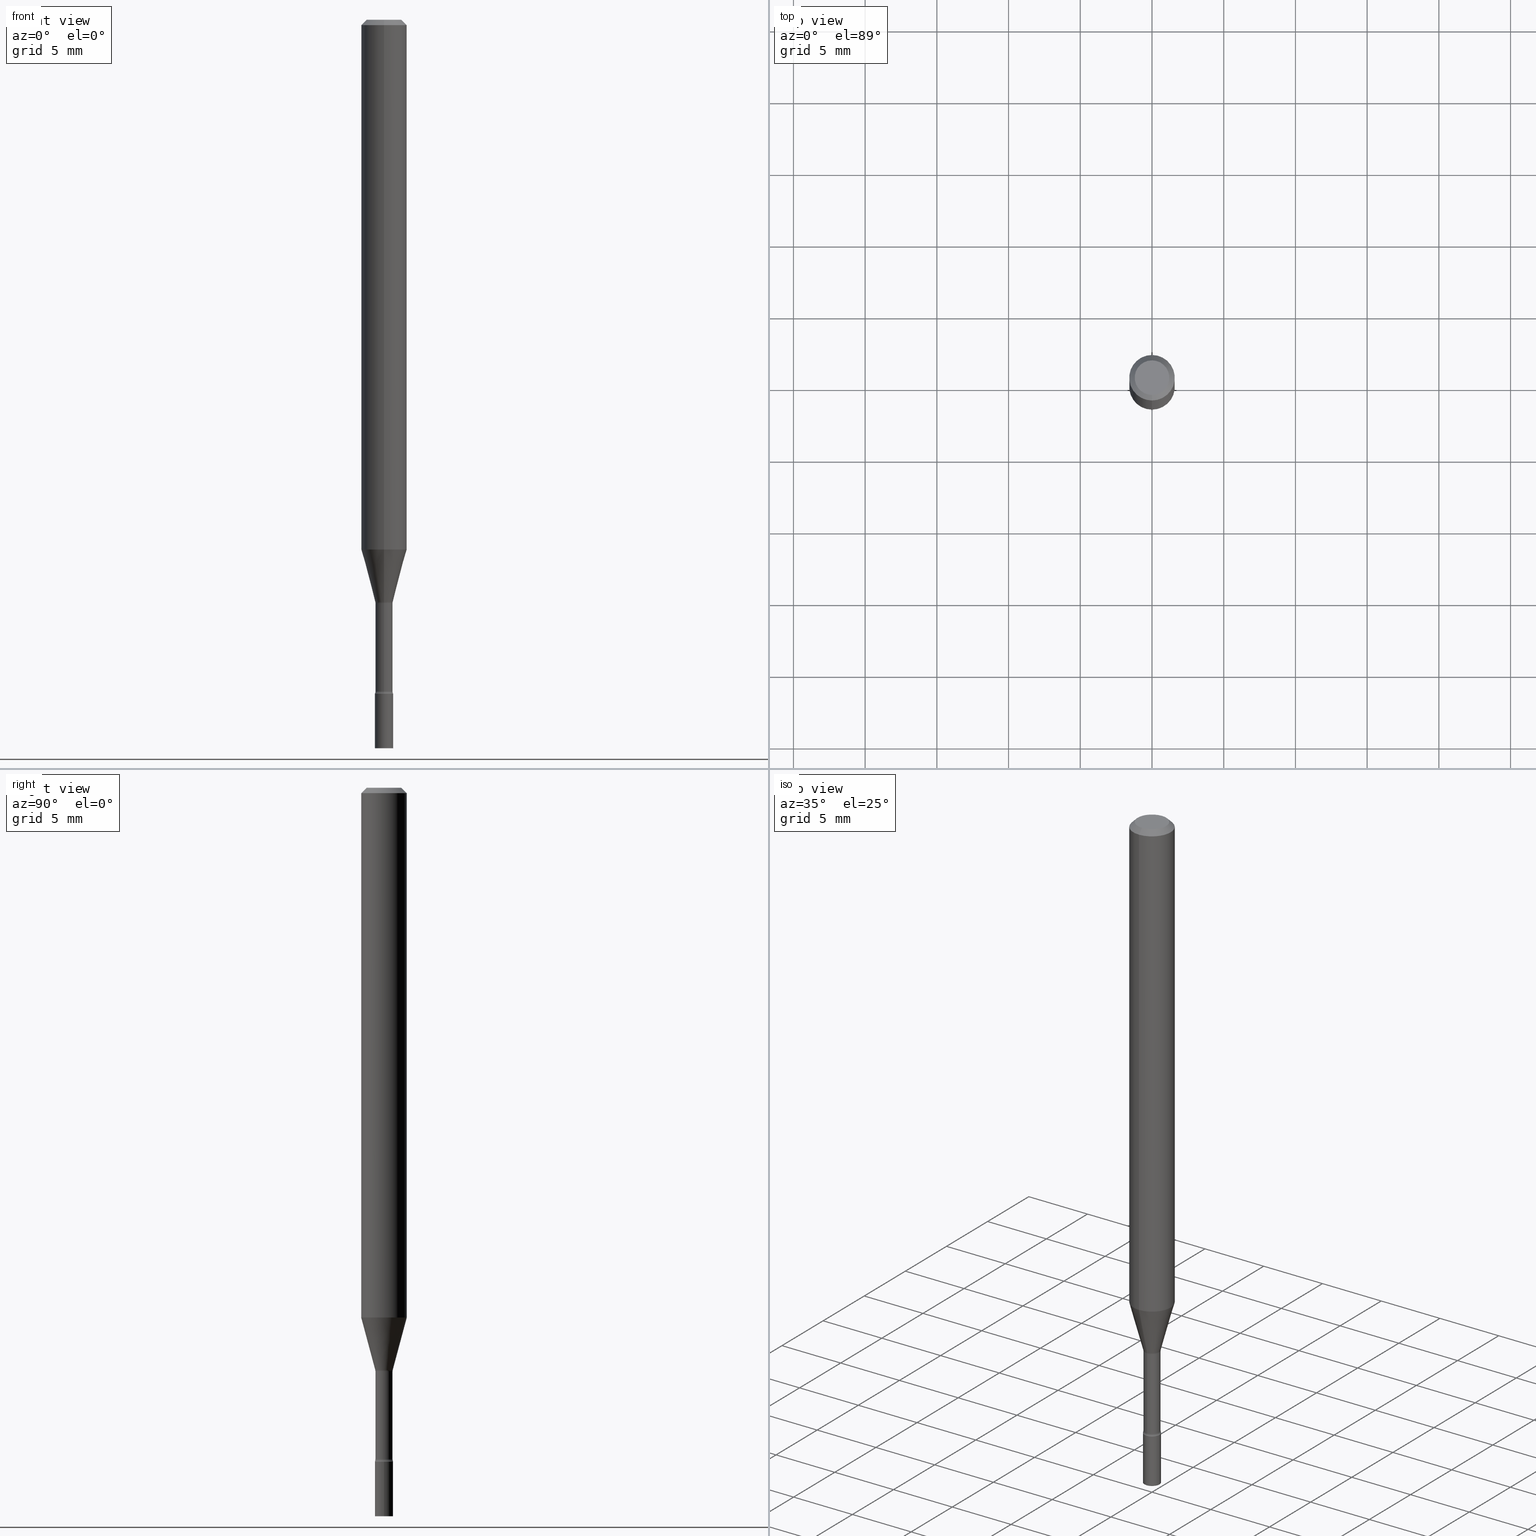
[diagram: canonical four-view strip — front | top / right | iso, engineering-drawing reading convention]
A machine part, canonical four-view strip (front | top / right | iso — engineering-drawing reading convention). The complete STEP part file that produces these views, byte-faithful:
ISO-10303-21;
HEADER;
FILE_DESCRIPTION (( 'STEP AP203' ),
    '1' );
FILE_NAME ('04276.STEP',
    '2024-03-08T22:46:18',
    ( '' ),
    ( '' ),
    'SwSTEP 2.0',
    'SolidWorks 2023',
    '' );
FILE_SCHEMA (( 'CONFIG_CONTROL_DESIGN' ));
ENDSEC;

DATA;
#1 = PERSON_AND_ORGANIZATION_ROLE ( 'creator' ) ;
#2 = DIRECTION ( 'NONE',  ( -2.445515036906521826E-29, 3.491415133818832582E-15, 1.000000000000000000 ) ) ;
#3 = AXIS2_PLACEMENT_3D ( 'NONE', #147, #113, #314 ) ;
#4 = DIRECTION ( 'NONE',  ( -6.982962677686266711E-15, -1.000000000000000000, 3.491415133818832582E-15 ) ) ;
#5 = EDGE_CURVE ( 'NONE', #335, #217, #296, .T. ) ;
#6 = LINE ( 'NONE', #9, #83 ) ;
#7 = CALENDAR_DATE ( 2024, 8, 3 ) ;
#8 = EDGE_CURVE ( 'NONE', #51, #105, #362, .T. ) ;
#9 = CARTESIAN_POINT ( 'NONE',  ( -1.640996229256272766E-16, -0.02350000000000000352, 8.204825564474257839E-17 ) ) ;
#10 = ORIENTED_EDGE ( 'NONE', *, *, #233, .T. ) ;
#11 = LINE ( 'NONE', #487, #102 ) ;
#12 = AXIS2_PLACEMENT_3D ( 'NONE', #122, #168, #284 ) ;
#13 = PERSON_AND_ORGANIZATION_ROLE ( 'creator' ) ;
#14 = CARTESIAN_POINT ( 'NONE',  ( 3.908159243488338509E-29, -5.579604345982483848E-15, -1.598092501787272912 ) ) ;
#15 = CC_DESIGN_DATE_AND_TIME_ASSIGNMENT ( #458, #299, ( #196 ) ) ;
#16 = CARTESIAN_POINT ( 'NONE',  ( -2.688440630908820659E-16, -0.03850000000000559919, -1.601974787463810834 ) ) ;
#17 = ORIENTED_EDGE ( 'NONE', *, *, #103, .T. ) ;
#18 = FACE_OUTER_BOUND ( 'NONE', #221, .T. ) ;
#19 = VERTEX_POINT ( 'NONE', #432 ) ;
#20 = PLANE ( 'NONE',  #440 ) ;
#21 = ORIENTED_EDGE ( 'NONE', *, *, #376, .F. ) ;
#22 = DIRECTION ( 'NONE',  ( -6.982962677686265922E-15, -1.000000000000000000, 0.000000000000000000 ) ) ;
#23 = ORIENTED_EDGE ( 'NONE', *, *, #116, .T. ) ;
#24 = FACE_OUTER_BOUND ( 'NONE', #254, .T. ) ;
#25 = ORIENTED_EDGE ( 'NONE', *, *, #321, .F. ) ;
#26 = EDGE_CURVE ( 'NONE', #56, #309, #448, .T. ) ;
#27 = CIRCLE ( 'NONE', #60, 0.01500000000000002720 ) ;
#28 = CIRCLE ( 'NONE', #330, 0.02350000000000000352 ) ;
#29 =( LENGTH_UNIT ( ) NAMED_UNIT ( * ) SI_UNIT ( $, .METRE. ) );
#30 = DIRECTION ( 'NONE',  ( -2.445515036906521826E-29, 3.491415133818832582E-15, 1.000000000000000000 ) ) ;
#31 = EDGE_LOOP ( 'NONE', ( #298, #186, #175, #178 ) ) ;
#32 = UNCERTAINTY_MEASURE_WITH_UNIT (LENGTH_MEASURE( 1.000000000000000082E-05 ), #241, 'distance_accuracy_value', 'NONE');
#33 = CARTESIAN_POINT ( 'NONE',  ( 3.668272555359789903E-31, -5.237122700728258955E-17, -0.01500000000000003067 ) ) ;
#34 = CIRCLE ( 'NONE', #482, 0.06250000000000000000 ) ;
#35 = DIRECTION ( 'NONE',  ( -6.982962677686266711E-15, -1.000000000000000000, 3.491415133818832582E-15 ) ) ;
#36 = ORIENTED_EDGE ( 'NONE', *, *, #216, .F. ) ;
#37 = DIRECTION ( 'NONE',  ( -2.445468806185136597E-29, 3.491481338843145583E-15, 1.000000000000000000 ) ) ;
#38 =( NAMED_UNIT ( * ) PLANE_ANGLE_UNIT ( ) SI_UNIT ( $, .RADIAN. ) );
#39 = CIRCLE ( 'NONE', #202, 0.01500000000000002720 ) ;
#40 = DIRECTION ( 'NONE',  ( 2.445515036906521826E-29, -3.491415133818832582E-15, -1.000000000000000000 ) ) ;
#41 = LOCAL_TIME ( 17, 46, 18.00000000000000000, #170 ) ;
#42 = DIRECTION ( 'NONE',  ( -2.445515036906521826E-29, 3.491415133818832582E-15, 1.000000000000000000 ) ) ;
#43 = CARTESIAN_POINT ( 'NONE',  ( 4.440892098500625669E-16, 0.06250000000000000000, -2.182134458636770364E-16 ) ) ;
#44 = PERSON_AND_ORGANIZATION_ROLE ( 'classification_officer' ) ;
#45 = EDGE_CURVE ( 'NONE', #164, #309, #392, .T. ) ;
#46 = DIRECTION ( 'NONE',  ( 1.000000000000000000, -6.982962677686267499E-15, 4.876176775795936353E-29 ) ) ;
#47 = ORIENTED_EDGE ( 'NONE', *, *, #8, .F. ) ;
#48 = MANIFOLD_SOLID_BREP ( 'Body-Move/Copy2[1]', #212 ) ;
#49 = FACE_OUTER_BOUND ( 'NONE', #383, .T. ) ;
#50 = CONICAL_SURFACE ( 'NONE', #338, 0.06250000000000000000, 0.7853981633974483900 ) ;
#51 = VERTEX_POINT ( 'NONE', #232 ) ;
#52 = AXIS2_PLACEMENT_3D ( 'NONE', #201, #485, #316 ) ;
#53 = APPROVAL_ROLE ( '' ) ;
#54 = CARTESIAN_POINT ( 'NONE',  ( 3.908159243488338509E-29, -5.579604345982483848E-15, -1.598092501787272912 ) ) ;
#55 = LINE ( 'NONE', #460, #69 ) ;
#56 = VERTEX_POINT ( 'NONE', #194 ) ;
#57 = ADVANCED_FACE ( 'NONE', ( #311 ), #110, .T. ) ;
#58 = FACE_OUTER_BOUND ( 'NONE', #378, .T. ) ;
#59 = ORIENTED_EDGE ( 'NONE', *, *, #233, .F. ) ;
#60 = AXIS2_PLACEMENT_3D ( 'NONE', #435, #238, #278 ) ;
#61 = LOCAL_TIME ( 17, 46, 18.00000000000000000, #292 ) ;
#62 = CARTESIAN_POINT ( 'NONE',  ( 3.316907271900976096E-16, 0.04749999999999999362, -1.803007466896564694E-16 ) ) ;
#63 = EDGE_LOOP ( 'NONE', ( #407, #228, #332, #211 ) ) ;
#64 = ADVANCED_FACE ( 'NONE', ( #434 ), #472, .F. ) ;
#65 = CYLINDRICAL_SURFACE ( 'NONE', #151, 0.02350000000000000352 ) ;
#66 = ORIENTED_EDGE ( 'NONE', *, *, #321, .T. ) ;
#67 = DIRECTION ( 'NONE',  ( 1.000000000000000000, 0.000000000000000000, 0.000000000000000000 ) ) ;
#68 = EDGE_LOOP ( 'NONE', ( #290, #99, #430, #512 ) ) ;
#69 = VECTOR ( 'NONE', #136, 39.37007874015748143 ) ;
#70 = DIRECTION ( 'NONE',  ( 1.000000000000000000, -7.105427357601001070E-15, 4.926314697764371135E-29 ) ) ;
#71 = EDGE_LOOP ( 'NONE', ( #188, #275, #183, #157 ) ) ;
#72 = EDGE_CURVE ( 'NONE', #422, #164, #247, .T. ) ;
#73 = DIRECTION ( 'NONE',  ( -6.982962677686265922E-15, -1.000000000000000000, 0.000000000000000000 ) ) ;
#74 = APPLICATION_PROTOCOL_DEFINITION ( 'international standard', 'config_control_design', 1994, #82 ) ;
#75 = CIRCLE ( 'NONE', #143, 0.02500000000000000139 ) ;
#76 = ORIENTED_EDGE ( 'NONE', *, *, #106, .F. ) ;
#77 = CARTESIAN_POINT ( 'NONE',  ( 4.890937612370273194E-29, -6.982962677686291165E-15, -2.000000000000000000 ) ) ;
#78 = DIRECTION ( 'NONE',  ( -6.982962677686265133E-15, -1.000000000000000000, 0.000000000000000000 ) ) ;
#79 = FACE_OUTER_BOUND ( 'NONE', #259, .T. ) ;
#80 = DIRECTION ( 'NONE',  ( -6.982962677686265133E-15, -1.000000000000000000, 0.000000000000000000 ) ) ;
#81 = PERSON_AND_ORGANIZATION ( #355, #449 ) ;
#82 = APPLICATION_CONTEXT ( 'configuration controlled 3d designs of mechanical parts and assemblies' ) ;
#83 = VECTOR ( 'NONE', #293, 39.37007874015748143 ) ;
#84 = CARTESIAN_POINT ( 'NONE',  ( 4.364351673553919652E-16, 0.06249999999999995143, -0.01500000000000024751 ) ) ;
#85 = CIRCLE ( 'NONE', #459, 0.02401111260566398189 ) ;
#86 = VERTEX_POINT ( 'NONE', #152 ) ;
#87 = EDGE_CURVE ( 'NONE', #97, #193, #264, .T. ) ;
#88 = CARTESIAN_POINT ( 'NONE',  ( -2.688440630908763960E-16, -0.03850000000000646655, -1.843461651584688887 ) ) ;
#89 = PERSON_AND_ORGANIZATION ( #355, #449 ) ;
#90 = DIRECTION ( 'NONE',  ( -6.982962677686265922E-15, -1.000000000000000000, 0.000000000000000000 ) ) ;
#91 = ORIENTED_EDGE ( 'NONE', *, *, #391, .T. ) ;
#92 = DIRECTION ( 'NONE',  ( -1.000000000000000000, 6.982962677686265922E-15, -4.876176775795935793E-29 ) ) ;
#93 = AXIS2_PLACEMENT_3D ( 'NONE', #62, #505, #222 ) ;
#94 = APPROVAL_PERSON_ORGANIZATION ( #131, #478, #165 ) ;
#95 = DIRECTION ( 'NONE',  ( 2.445515036906521826E-29, -3.491415133818832582E-15, -1.000000000000000000 ) ) ;
#96 = ADVANCED_FACE ( 'NONE', ( #191 ), #312, .F. ) ;
#97 = VERTEX_POINT ( 'NONE', #474 ) ;
#98 = CARTESIAN_POINT ( 'NONE',  ( 3.908159243488338509E-29, -5.579604345982483848E-15, -1.598092501787272912 ) ) ;
#99 = ORIENTED_EDGE ( 'NONE', *, *, #252, .T. ) ;
#100 = CARTESIAN_POINT ( 'NONE',  ( 4.524117291442502256E-29, -6.459240476859818795E-15, -1.849999999999999867 ) ) ;
#101 = ORIENTED_EDGE ( 'NONE', *, *, #87, .T. ) ;
#102 = VECTOR ( 'NONE', #121, 39.37007874015748143 ) ;
#103 = EDGE_CURVE ( 'NONE', #19, #373, #273, .T. ) ;
#104 = FACE_OUTER_BOUND ( 'NONE', #507, .T. ) ;
#105 = VERTEX_POINT ( 'NONE', #277 ) ;
#106 = EDGE_CURVE ( 'NONE', #461, #97, #27, .T. ) ;
#107 = VERTEX_POINT ( 'NONE', #471 ) ;
#108 = FACE_OUTER_BOUND ( 'NONE', #348, .T. ) ;
#109 = AXIS2_PLACEMENT_3D ( 'NONE', #400, #204, #78 ) ;
#110 = CYLINDRICAL_SURFACE ( 'NONE', #371, 0.02350000000000000352 ) ;
#111 = CARTESIAN_POINT ( 'NONE',  ( 4.890937612370273194E-29, -6.982962677686291165E-15, -2.000000000000000000 ) ) ;
#112 = DATE_AND_TIME ( #476, #413 ) ;
#113 = DIRECTION ( 'NONE',  ( -2.445515036906521826E-29, 3.491415133818832582E-15, 1.000000000000000000 ) ) ;
#114 = APPLICATION_CONTEXT ( 'configuration controlled 3d designs of mechanical parts and assemblies' ) ;
#115 = DIRECTION ( 'NONE',  ( 1.000000000000000000, -6.982962677686254878E-15, 0.000000000000000000 ) ) ;
#116 = EDGE_CURVE ( 'NONE', #219, #309, #199, .T. ) ;
#117 = AXIS2_PLACEMENT_3D ( 'NONE', #453, #495, #80 ) ;
#118 = CIRCLE ( 'NONE', #179, 0.02500000000000000139 ) ;
#119 = ORIENTED_EDGE ( 'NONE', *, *, #360, .T. ) ;
#120 = DIRECTION ( 'NONE',  ( -6.982962677686265922E-15, -1.000000000000000000, 3.491415133818832582E-15 ) ) ;
#121 = DIRECTION ( 'NONE',  ( 1.839019923739601104E-15, 0.2588190451025250693, 0.9659258262890670910 ) ) ;
#122 = CARTESIAN_POINT ( 'NONE',  ( 0.000000000000000000, 0.000000000000000000, 0.000000000000000000 ) ) ;
#123 = DATE_TIME_ROLE ( 'creation_date' ) ;
#124 = DESIGN_CONTEXT ( 'detailed design', #114, 'design' ) ;
#125 = AXIS2_PLACEMENT_3D ( 'NONE', #272, #513, #519 ) ;
#126 = LINE ( 'NONE', #289, #304 ) ;
#127 = ADVANCED_FACE ( 'NONE', ( #108 ), #329, .T. ) ;
#128 = ORIENTED_EDGE ( 'NONE', *, *, #270, .F. ) ;
#129 = DATE_AND_TIME ( #452, #381 ) ;
#130 = CARTESIAN_POINT ( 'NONE',  ( 3.917653431487879575E-29, -5.593159016947357312E-15, -1.601974787463810834 ) ) ;
#131 = PERSON_AND_ORGANIZATION ( #355, #449 ) ;
#132 = CARTESIAN_POINT ( 'NONE',  ( -1.676687031750346939E-16, -0.02401111260566956077, -1.598092501787272912 ) ) ;
#133 = DIRECTION ( 'NONE',  ( -1.807323732225330928E-15, -0.2588190451025182970, 0.9659258262890689783 ) ) ;
#134 = AXIS2_PLACEMENT_3D ( 'NONE', #111, #310, #399 ) ;
#135 = ORIENTED_EDGE ( 'NONE', *, *, #237, .F. ) ;
#136 = DIRECTION ( 'NONE',  ( -2.445468806185136877E-29, 3.491481338843145188E-15, 1.000000000000000000 ) ) ;
#137 = ORIENTED_EDGE ( 'NONE', *, *, #360, .F. ) ;
#138 = CARTESIAN_POINT ( 'NONE',  ( 0.02500000000000000139, -7.157536744628447044E-15, -2.000000000000000000 ) ) ;
#139 = ORIENTED_EDGE ( 'NONE', *, *, #158, .F. ) ;
#140 = EDGE_CURVE ( 'NONE', #461, #230, #195, .T. ) ;
#141 = DIRECTION ( 'NONE',  ( -6.982962677686267499E-15, -1.000000000000000000, 0.000000000000000000 ) ) ;
#142 = EDGE_LOOP ( 'NONE', ( #197, #327, #146, #265 ) ) ;
#143 = AXIS2_PLACEMENT_3D ( 'NONE', #100, #384, #374 ) ;
#144 = EDGE_CURVE ( 'NONE', #164, #422, #411, .T. ) ;
#145 = DIRECTION ( 'NONE',  ( -6.982962677686265922E-15, -1.000000000000000000, 3.491415133818832582E-15 ) ) ;
#146 = ORIENTED_EDGE ( 'NONE', *, *, #148, .F. ) ;
#147 = CARTESIAN_POINT ( 'NONE',  ( 3.917579371037813479E-29, -5.593265075727110025E-15, -1.601974787463810834 ) ) ;
#148 = EDGE_CURVE ( 'NONE', #309, #56, #167, .T. ) ;
#149 = DIRECTION ( 'NONE',  ( -6.982962677686265922E-15, -1.000000000000000000, 3.483106191921935554E-15 ) ) ;
#150 = AXIS2_PLACEMENT_3D ( 'NONE', #250, #361, #162 ) ;
#151 = AXIS2_PLACEMENT_3D ( 'NONE', #229, #42, #120 ) ;
#152 = CARTESIAN_POINT ( 'NONE',  ( -1.745740669421115301E-16, -0.02500000000000647885, -1.849999999999999867 ) ) ;
#153 = COORDINATED_UNIVERSAL_TIME_OFFSET ( 5, 0, .BEHIND. ) ;
#154 = DIRECTION ( 'NONE',  ( -6.982962677686266711E-15, -1.000000000000000000, 3.491415133818832582E-15 ) ) ;
#155 = ADVANCED_FACE ( 'NONE', ( #200 ), #50, .T. ) ;
#156 = COORDINATED_UNIVERSAL_TIME_OFFSET ( 5, 0, .BEHIND. ) ;
#157 = ORIENTED_EDGE ( 'NONE', *, *, #26, .T. ) ;
#158 = EDGE_CURVE ( 'NONE', #217, #86, #213, .T. ) ;
#159 = DIRECTION ( 'NONE',  ( -2.445515036906521826E-29, 3.491415133818832582E-15, 1.000000000000000000 ) ) ;
#160 = AXIS2_PLACEMENT_3D ( 'NONE', #16, #456, #258 ) ;
#161 = DIRECTION ( 'NONE',  ( -2.445515036906521826E-29, 3.491415133818832582E-15, 1.000000000000000000 ) ) ;
#162 = DIRECTION ( 'NONE',  ( -6.982962677686265133E-15, -1.000000000000000000, 0.000000000000000000 ) ) ;
#163 = FACE_OUTER_BOUND ( 'NONE', #142, .T. ) ;
#164 = VERTEX_POINT ( 'NONE', #406 ) ;
#165 = APPROVAL_ROLE ( '' ) ;
#166 = CIRCLE ( 'NONE', #117, 0.02500000000000000139 ) ;
#167 = CIRCLE ( 'NONE', #394, 0.06250000000000000000 ) ;
#168 = DIRECTION ( 'NONE',  ( -2.445515036906521826E-29, 3.491415133818832582E-15, 1.000000000000000000 ) ) ;
#169 = AXIS2_PLACEMENT_3D ( 'NONE', #261, #187, #297 ) ;
#170 = COORDINATED_UNIVERSAL_TIME_OFFSET ( 5, 0, .BEHIND. ) ;
#171 = CARTESIAN_POINT ( 'NONE',  ( -1.640996229255880800E-16, -0.02350000000000559280, -1.601974787463810834 ) ) ;
#172 = ADVANCED_FACE ( 'NONE', ( #49 ), #322, .T. ) ;
#173 = DATE_AND_TIME ( #328, #41 ) ;
#174 = DIRECTION ( 'NONE',  ( -2.445515036906521826E-29, 3.491415133818832582E-15, 1.000000000000000000 ) ) ;
#175 = ORIENTED_EDGE ( 'NONE', *, *, #158, .T. ) ;
#176 = DIRECTION ( 'NONE',  ( -2.445515036906521826E-29, 3.491415133818832582E-15, 1.000000000000000000 ) ) ;
#177 = AXIS2_PLACEMENT_3D ( 'NONE', #98, #467, #500 ) ;
#178 = ORIENTED_EDGE ( 'NONE', *, *, #276, .F. ) ;
#179 = AXIS2_PLACEMENT_3D ( 'NONE', #77, #243, #115 ) ;
#180 = PRODUCT ( '04276', '04276', '', ( #365 ) ) ;
#181 = ADVANCED_FACE ( 'NONE', ( #207 ), #493, .F. ) ;
#182 = FACE_OUTER_BOUND ( 'NONE', #307, .T. ) ;
#183 = ORIENTED_EDGE ( 'NONE', *, *, #226, .T. ) ;
#184 = DIRECTION ( 'NONE',  ( -2.438088387897960049E-29, 3.491481338843145188E-15, 1.000000000000000000 ) ) ;
#185 = PRODUCT_RELATED_PRODUCT_CATEGORY ( 'detail', '', ( #180 ) ) ;
#186 = ORIENTED_EDGE ( 'NONE', *, *, #5, .T. ) ;
#187 = DIRECTION ( 'NONE',  ( -2.445515036906521826E-29, 3.491415133818832582E-15, 1.000000000000000000 ) ) ;
#188 = ORIENTED_EDGE ( 'NONE', *, *, #45, .F. ) ;
#189 = AXIS2_PLACEMENT_3D ( 'NONE', #350, #317, #73 ) ;
#190 = APPROVAL_STATUS ( 'not_yet_approved' ) ;
#191 = FACE_OUTER_BOUND ( 'NONE', #426, .T. ) ;
#192 = EDGE_CURVE ( 'NONE', #107, #193, #6, .T. ) ;
#193 = VERTEX_POINT ( 'NONE', #171 ) ;
#194 = CARTESIAN_POINT ( 'NONE',  ( 4.440892098500983121E-16, 0.06249999999999995143, -0.01500000000000024751 ) ) ;
#195 = CIRCLE ( 'NONE', #353, 0.02401111260566398189 ) ;
#196 = SECURITY_CLASSIFICATION ( '', '', #294 ) ;
#197 = ORIENTED_EDGE ( 'NONE', *, *, #516, .T. ) ;
#198 = PERSON_AND_ORGANIZATION ( #355, #449 ) ;
#199 = LINE ( 'NONE', #359, #424 ) ;
#200 = FACE_OUTER_BOUND ( 'NONE', #71, .T. ) ;
#201 = CARTESIAN_POINT ( 'NONE',  ( 0.000000000000000000, 0.000000000000000000, 0.000000000000000000 ) ) ;
#202 = AXIS2_PLACEMENT_3D ( 'NONE', #88, #414, #141 ) ;
#203 = APPROVAL_PERSON_ORGANIZATION ( #206, #356, #349 ) ;
#204 = DIRECTION ( 'NONE',  ( -2.445515036906521826E-29, 3.491415133818832582E-15, 1.000000000000000000 ) ) ;
#205 = ORIENTED_EDGE ( 'NONE', *, *, #245, .T. ) ;
#206 = PERSON_AND_ORGANIZATION ( #355, #449 ) ;
#207 = FACE_OUTER_BOUND ( 'NONE', #343, .T. ) ;
#208 = ORIENTED_EDGE ( 'NONE', *, *, #337, .T. ) ;
#209 = APPROVAL_DATE_TIME ( #129, #478 ) ;
#210 = DIRECTION ( 'NONE',  ( 4.937700262164548042E-15, 0.7071067811865451302, -0.7071067811865499042 ) ) ;
#211 = ORIENTED_EDGE ( 'NONE', *, *, #226, .F. ) ;
#212 = CLOSED_SHELL ( 'NONE', ( #172, #423, #486, #379 ) ) ;
#213 = CIRCLE ( 'NONE', #109, 0.02500000000000000139 ) ;
#214 = AXIS2_PLACEMENT_3D ( 'NONE', #347, #302, #344 ) ;
#215 = LINE ( 'NONE', #84, #431 ) ;
#216 = EDGE_CURVE ( 'NONE', #193, #97, #223, .T. ) ;
#217 = VERTEX_POINT ( 'NONE', #408 ) ;
#218 = CARTESIAN_POINT ( 'NONE',  ( -4.364351673553912750E-16, -0.06250000000000005551, -0.01499999999999981209 ) ) ;
#219 = VERTEX_POINT ( 'NONE', #324 ) ;
#220 = DIRECTION ( 'NONE',  ( -2.445515036906521826E-29, 3.491415133818832582E-15, 1.000000000000000000 ) ) ;
#221 = EDGE_LOOP ( 'NONE', ( #224, #10, #370, #21 ) ) ;
#222 = DIRECTION ( 'NONE',  ( 6.982962677686265922E-15, 1.000000000000000000, -3.491415133818832582E-15 ) ) ;
#223 = CIRCLE ( 'NONE', #480, 0.02350000000000000352 ) ;
#224 = ORIENTED_EDGE ( 'NONE', *, *, #398, .T. ) ;
#225 = PRODUCT_DEFINITION_FORMATION_WITH_SPECIFIED_SOURCE ( 'ANY', '', #180, .NOT_KNOWN. ) ;
#226 = EDGE_CURVE ( 'NONE', #422, #56, #215, .T. ) ;
#227 = CARTESIAN_POINT ( 'NONE',  ( 4.508213188910888464E-29, -6.436289908957442537E-15, -1.843461651584688887 ) ) ;
#228 = ORIENTED_EDGE ( 'NONE', *, *, #45, .T. ) ;
#229 = CARTESIAN_POINT ( 'NONE',  ( 0.000000000000000000, 0.000000000000000000, 0.000000000000000000 ) ) ;
#230 = VERTEX_POINT ( 'NONE', #132 ) ;
#231 = FACE_OUTER_BOUND ( 'NONE', #490, .T. ) ;
#232 = CARTESIAN_POINT ( 'NONE',  ( 0.02500000000000000139, -6.633814543801975463E-15, -1.849999999999999867 ) ) ;
#233 = EDGE_CURVE ( 'NONE', #461, #286, #11, .T. ) ;
#234 = AXIS2_PLACEMENT_3D ( 'NONE', #517, #30, #154 ) ;
#235 = CARTESIAN_POINT ( 'NONE',  ( -4.287811248607203282E-16, -0.06250000000000005551, -0.01499999999999981209 ) ) ;
#236 = DIRECTION ( 'NONE',  ( -2.445515036906521826E-29, 3.491415133818832582E-15, 1.000000000000000000 ) ) ;
#237 = EDGE_CURVE ( 'NONE', #286, #56, #333, .T. ) ;
#238 = DIRECTION ( 'NONE',  ( 1.000000000000000000, -7.105427357601001070E-15, 4.926314697764371135E-29 ) ) ;
#239 = TOROIDAL_SURFACE ( 'NONE', #169, 0.03850000000000002726, 0.01500000000000003067 ) ;
#240 = DIMENSIONAL_EXPONENTS ( 1.000000000000000000, 0.000000000000000000, 0.000000000000000000, 0.000000000000000000, 0.000000000000000000, 0.000000000000000000, 0.000000000000000000 ) ;
#241 =( CONVERSION_BASED_UNIT ( 'INCH', #281 ) LENGTH_UNIT ( ) NAMED_UNIT ( #240 ) );
#242 = CARTESIAN_POINT ( 'NONE',  ( 3.668272555359789903E-31, -5.237122700728258955E-17, -0.01500000000000003067 ) ) ;
#243 = DIRECTION ( 'NONE',  ( -2.445468806185136597E-29, 3.491481338843145583E-15, 1.000000000000000000 ) ) ;
#244 = CARTESIAN_POINT ( 'NONE',  ( 3.668272555359789903E-31, -5.237122700728258955E-17, -0.01500000000000003067 ) ) ;
#245 = EDGE_CURVE ( 'NONE', #86, #217, #166, .T. ) ;
#246 = PERSON_AND_ORGANIZATION_ROLE ( 'design_owner' ) ;
#247 = CIRCLE ( 'NONE', #234, 0.04749999999999999362 ) ;
#248 = DIRECTION ( 'NONE',  ( -2.445515036906521826E-29, 3.491415133818832582E-15, 1.000000000000000000 ) ) ;
#249 = ADVANCED_FACE ( 'NONE', ( #163 ), #444, .T. ) ;
#250 = CARTESIAN_POINT ( 'NONE',  ( 3.908159243488338509E-29, -5.579604345982483848E-15, -1.598092501787272912 ) ) ;
#251 = APPROVAL_STATUS ( 'not_yet_approved' ) ;
#252 = EDGE_CURVE ( 'NONE', #335, #107, #395, .T. ) ;
#253 = DIRECTION ( 'NONE',  ( -6.982962677686265922E-15, -1.000000000000000000, 0.000000000000000000 ) ) ;
#254 = EDGE_LOOP ( 'NONE', ( #271, #497 ) ) ;
#255 = VECTOR ( 'NONE', #283, 39.37007874015748143 ) ;
#256 = AXIS2_PLACEMENT_3D ( 'NONE', #382, #184, #427 ) ;
#257 = CARTESIAN_POINT ( 'NONE',  ( -1.676687031750346939E-16, -0.02401111260566956077, -1.598092501787272912 ) ) ;
#258 = DIRECTION ( 'NONE',  ( -6.982962677686267499E-15, -1.000000000000000000, 0.000000000000000000 ) ) ;
#259 = EDGE_LOOP ( 'NONE', ( #269, #468, #101, #262 ) ) ;
#260 = COORDINATED_UNIVERSAL_TIME_OFFSET ( 5, 0, .BEHIND. ) ;
#261 = CARTESIAN_POINT ( 'NONE',  ( 4.508127964348888727E-29, -6.436411955380905868E-15, -1.843461651584688887 ) ) ;
#262 = ORIENTED_EDGE ( 'NONE', *, *, #326, .F. ) ;
#263 = FACE_OUTER_BOUND ( 'NONE', #385, .T. ) ;
#264 = CIRCLE ( 'NONE', #189, 0.02350000000000000352 ) ;
#265 = ORIENTED_EDGE ( 'NONE', *, *, #116, .F. ) ;
#266 = CIRCLE ( 'NONE', #288, 0.06250000000000000000 ) ;
#267 = CC_DESIGN_PERSON_AND_ORGANIZATION_ASSIGNMENT ( #89, #13, ( #225 ) ) ;
#268 = CARTESIAN_POINT ( 'NONE',  ( 3.840629472727447874E-16, 0.04749999999999999362, -1.947592745229184365E-16 ) ) ;
#269 = ORIENTED_EDGE ( 'NONE', *, *, #140, .F. ) ;
#270 = EDGE_CURVE ( 'NONE', #373, #51, #126, .T. ) ;
#271 = ORIENTED_EDGE ( 'NONE', *, *, #72, .T. ) ;
#272 = CARTESIAN_POINT ( 'NONE',  ( 4.524117291442502256E-29, -6.459240476859818795E-15, -1.849999999999999867 ) ) ;
#273 = CIRCLE ( 'NONE', #134, 0.02500000000000000139 ) ;
#274 = TOROIDAL_SURFACE ( 'NONE', #280, 0.03850000000000000644, 0.01500000000000002720 ) ;
#275 = ORIENTED_EDGE ( 'NONE', *, *, #72, .F. ) ;
#276 = EDGE_CURVE ( 'NONE', #107, #86, #39, .T. ) ;
#277 = CARTESIAN_POINT ( 'NONE',  ( -0.02500000000000000139, -6.543465893333030170E-15, -1.849999999999999867 ) ) ;
#278 = DIRECTION ( 'NONE',  ( 7.105427357601001859E-15, 1.000000000000000000, 0.000000000000000000 ) ) ;
#279 = AXIS2_PLACEMENT_3D ( 'NONE', #351, #70, #282 ) ;
#280 = AXIS2_PLACEMENT_3D ( 'NONE', #358, #443, #145 ) ;
#281 = LENGTH_MEASURE_WITH_UNIT ( LENGTH_MEASURE( 0.02539999999999999897 ), #29 );
#282 = DIRECTION ( 'NONE',  ( 7.105427357601001859E-15, 1.000000000000000000, 0.000000000000000000 ) ) ;
#283 = DIRECTION ( 'NONE',  ( -2.445515036906521826E-29, 3.491415133818832582E-15, 1.000000000000000000 ) ) ;
#284 = DIRECTION ( 'NONE',  ( -6.982962677686265922E-15, -1.000000000000000000, 3.491415133818832582E-15 ) ) ;
#285 = APPROVAL ( #251, 'UNSPECIFIED' ) ;
#286 = VERTEX_POINT ( 'NONE', #295 ) ;
#287 = AXIS2_PLACEMENT_3D ( 'NONE', #33, #236, #149 ) ;
#288 = AXIS2_PLACEMENT_3D ( 'NONE', #469, #159, #401 ) ;
#289 = CARTESIAN_POINT ( 'NONE',  ( 0.02500000000000000139, -1.745740669421566924E-16, 1.219044193948984123E-30 ) ) ;
#290 = ORIENTED_EDGE ( 'NONE', *, *, #391, .F. ) ;
#291 = ADVANCED_FACE ( 'NONE', ( #24 ), #502, .F. ) ;
#292 = COORDINATED_UNIVERSAL_TIME_OFFSET ( 5, 0, .BEHIND. ) ;
#293 = DIRECTION ( 'NONE',  ( -2.445515036906521826E-29, 3.491415133818832582E-15, 1.000000000000000000 ) ) ;
#294 = SECURITY_CLASSIFICATION_LEVEL ( 'unclassified' ) ;
#295 = CARTESIAN_POINT ( 'NONE',  ( 4.440892098500979177E-16, 0.06249999999999489991, -1.454450018504814368 ) ) ;
#296 = CIRCLE ( 'NONE', #279, 0.01500000000000002720 ) ;
#297 = DIRECTION ( 'NONE',  ( -6.982962677686266711E-15, -1.000000000000000000, 3.491415133818832582E-15 ) ) ;
#298 = ORIENTED_EDGE ( 'NONE', *, *, #252, .F. ) ;
#299 = DATE_TIME_ROLE ( 'classification_date' ) ;
#300 = CARTESIAN_POINT ( 'NONE',  ( 1.745740669422055771E-16, 0.02499999999999301739, -2.000000000000000000 ) ) ;
#301 = ORIENTED_EDGE ( 'NONE', *, *, #337, .F. ) ;
#302 = DIRECTION ( 'NONE',  ( -2.445515036906521826E-29, 3.491415133818832582E-15, 1.000000000000000000 ) ) ;
#303 = ORIENTED_EDGE ( 'NONE', *, *, #5, .F. ) ;
#304 = VECTOR ( 'NONE', #451, 39.37007874015748143 ) ;
#305 = CARTESIAN_POINT ( 'NONE',  ( 3.668272555359789903E-31, -5.237122700728258955E-17, -0.01500000000000003067 ) ) ;
#306 = AXIS2_PLACEMENT_3D ( 'NONE', #305, #95, #421 ) ;
#307 = EDGE_LOOP ( 'NONE', ( #135, #439, #23, #447 ) ) ;
#308 = CYLINDRICAL_SURFACE ( 'NONE', #52, 0.02500000000000000139 ) ;
#309 = VERTEX_POINT ( 'NONE', #218 ) ;
#310 = DIRECTION ( 'NONE',  ( -2.445468806185136597E-29, 3.491481338843145583E-15, 1.000000000000000000 ) ) ;
#311 = FACE_OUTER_BOUND ( 'NONE', #68, .T. ) ;
#312 = TOROIDAL_SURFACE ( 'NONE', #3, 0.03850000000000000644, 0.01500000000000002720 ) ;
#313 = LOCAL_TIME ( 17, 46, 18.00000000000000000, #156 ) ;
#314 = DIRECTION ( 'NONE',  ( -6.982962677686265922E-15, -1.000000000000000000, 3.491415133818832582E-15 ) ) ;
#315 = ADVANCED_FACE ( 'NONE', ( #18 ), #457, .T. ) ;
#316 = DIRECTION ( 'NONE',  ( 1.000000000000000000, -6.982962677686267499E-15, 4.876176775795936353E-29 ) ) ;
#317 = DIRECTION ( 'NONE',  ( -2.445515036906521826E-29, 3.491415133818832582E-15, 1.000000000000000000 ) ) ;
#318 = CALENDAR_DATE ( 2024, 8, 3 ) ;
#319 = CARTESIAN_POINT ( 'NONE',  ( 0.000000000000000000, 0.000000000000000000, 0.000000000000000000 ) ) ;
#320 = DIRECTION ( 'NONE',  ( -6.982962677686265922E-15, -1.000000000000000000, 4.370956789862821150E-15 ) ) ;
#321 = EDGE_CURVE ( 'NONE', #105, #51, #75, .T. ) ;
#322 = CYLINDRICAL_SURFACE ( 'NONE', #346, 0.02500000000000000139 ) ;
#323 = CC_DESIGN_PERSON_AND_ORGANIZATION_ASSIGNMENT ( #81, #246, ( #180 ) ) ;
#324 = CARTESIAN_POINT ( 'NONE',  ( -4.364351673553561707E-16, -0.06250000000000509315, -1.454450018504813924 ) ) ;
#325 = CARTESIAN_POINT ( 'NONE',  ( 1.745740669422019040E-16, 0.02499999999999354475, -1.849999999999999867 ) ) ;
#326 = EDGE_CURVE ( 'NONE', #230, #193, #438, .T. ) ;
#327 = ORIENTED_EDGE ( 'NONE', *, *, #237, .T. ) ;
#328 = CALENDAR_DATE ( 2024, 8, 3 ) ;
#329 = CONICAL_SURFACE ( 'NONE', #150, 0.02401111260566398189, 0.2617993877991502960 ) ;
#330 = AXIS2_PLACEMENT_3D ( 'NONE', #227, #220, #22 ) ;
#331 = CARTESIAN_POINT ( 'NONE',  ( 7.071709445554710523E-46, -1.009614457795831172E-31, -2.891705566652387880E-17 ) ) ;
#332 = ORIENTED_EDGE ( 'NONE', *, *, #148, .T. ) ;
#333 = LINE ( 'NONE', #43, #255 ) ;
#334 = LINE ( 'NONE', #257, #339 ) ;
#335 = VERTEX_POINT ( 'NONE', #418 ) ;
#336 = APPROVAL_STATUS ( 'not_yet_approved' ) ;
#337 = EDGE_CURVE ( 'NONE', #19, #105, #55, .T. ) ;
#338 = AXIS2_PLACEMENT_3D ( 'NONE', #242, #40, #442 ) ;
#339 = VECTOR ( 'NONE', #133, 39.37007874015748143 ) ;
#340 = ORIENTED_EDGE ( 'NONE', *, *, #270, .T. ) ;
#341 = CC_DESIGN_PERSON_AND_ORGANIZATION_ASSIGNMENT ( #198, #1, ( #520 ) ) ;
#342 = CYLINDRICAL_SURFACE ( 'NONE', #214, 0.06250000000000000000 ) ;
#343 = EDGE_LOOP ( 'NONE', ( #501, #139 ) ) ;
#344 = DIRECTION ( 'NONE',  ( -6.982962677686265922E-15, -1.000000000000000000, 3.491415133818832582E-15 ) ) ;
#345 = ORIENTED_EDGE ( 'NONE', *, *, #140, .T. ) ;
#346 = AXIS2_PLACEMENT_3D ( 'NONE', #372, #37, #46 ) ;
#347 = CARTESIAN_POINT ( 'NONE',  ( 0.000000000000000000, 0.000000000000000000, 0.000000000000000000 ) ) ;
#348 = EDGE_LOOP ( 'NONE', ( #59, #345, #420, #465 ) ) ;
#349 = APPROVAL_ROLE ( '' ) ;
#350 = CARTESIAN_POINT ( 'NONE',  ( 3.917653431487879575E-29, -5.593159016947357312E-15, -1.601974787463810834 ) ) ;
#351 = CARTESIAN_POINT ( 'NONE',  ( 2.735589532676837796E-16, 0.03849999999999359490, -1.843461651584688887 ) ) ;
#352 = DIRECTION ( 'NONE',  ( -2.445515036906521826E-29, 3.491415133818832582E-15, 1.000000000000000000 ) ) ;
#353 = AXIS2_PLACEMENT_3D ( 'NONE', #14, #248, #402 ) ;
#354 = CC_DESIGN_APPROVAL ( #285, ( #196 ) ) ;
#355 = PERSON ( 'UNSPECIFIED', 'UNSPECIFIED', 'UNSPECIFIED', ('UNSPECIFIED'), ('UNSPECIFIED'), ('UNSPECIFIED') ) ;
#356 = APPROVAL ( #190, 'UNSPECIFIED' ) ;
#357 = ORIENTED_EDGE ( 'NONE', *, *, #103, .F. ) ;
#358 = CARTESIAN_POINT ( 'NONE',  ( 3.917579371037813479E-29, -5.593265075727110025E-15, -1.601974787463810834 ) ) ;
#359 = CARTESIAN_POINT ( 'NONE',  ( -4.364351673553916201E-16, -0.06250000000000000000, 2.182134458636770364E-16 ) ) ;
#360 = EDGE_CURVE ( 'NONE', #107, #335, #28, .T. ) ;
#361 = DIRECTION ( 'NONE',  ( -2.445515036906521826E-29, 3.491415133818832582E-15, 1.000000000000000000 ) ) ;
#362 = CIRCLE ( 'NONE', #125, 0.02500000000000000139 ) ;
#363 = VECTOR ( 'NONE', #174, 39.37007874015748143 ) ;
#364 = DIRECTION ( 'NONE',  ( -2.445515036906521545E-29, 3.491415133818832582E-15, 1.000000000000000000 ) ) ;
#365 = MECHANICAL_CONTEXT ( 'NONE', #82, 'mechanical' ) ;
#366 = DIRECTION ( 'NONE',  ( -2.445515036906521826E-29, 3.491415133818832582E-15, 1.000000000000000000 ) ) ;
#367 = PERSON_AND_ORGANIZATION_ROLE ( 'design_supplier' ) ;
#368 = CC_DESIGN_PERSON_AND_ORGANIZATION_ASSIGNMENT ( #412, #367, ( #225 ) ) ;
#369 = DIRECTION ( 'NONE',  ( -6.982962677686265922E-15, -1.000000000000000000, 3.483106191921935554E-15 ) ) ;
#370 = ORIENTED_EDGE ( 'NONE', *, *, #516, .F. ) ;
#371 = AXIS2_PLACEMENT_3D ( 'NONE', #319, #352, #477 ) ;
#372 = CARTESIAN_POINT ( 'NONE',  ( 0.000000000000000000, 0.000000000000000000, 0.000000000000000000 ) ) ;
#373 = VERTEX_POINT ( 'NONE', #138 ) ;
#374 = DIRECTION ( 'NONE',  ( 1.000000000000000000, -6.982962677686254878E-15, 0.000000000000000000 ) ) ;
#375 = ORIENTED_EDGE ( 'NONE', *, *, #494, .T. ) ;
#376 = EDGE_CURVE ( 'NONE', #230, #219, #334, .T. ) ;
#377 = LINE ( 'NONE', #510, #363 ) ;
#378 = EDGE_LOOP ( 'NONE', ( #428, #66 ) ) ;
#379 = ADVANCED_FACE ( 'NONE', ( #496 ), #20, .T. ) ;
#380 = AXIS2_PLACEMENT_3D ( 'NONE', #389, #481, #35 ) ;
#381 = LOCAL_TIME ( 17, 46, 18.00000000000000000, #260 ) ;
#382 = CARTESIAN_POINT ( 'NONE',  ( 4.524117291442502256E-29, -6.459240476859818795E-15, -1.849999999999999867 ) ) ;
#383 = EDGE_LOOP ( 'NONE', ( #375, #208, #47, #128 ) ) ;
#384 = DIRECTION ( 'NONE',  ( -2.445468806185136597E-29, 3.491481338843145583E-15, 1.000000000000000000 ) ) ;
#385 = EDGE_LOOP ( 'NONE', ( #303, #137, #470, #205 ) ) ;
#386 = DIRECTION ( 'NONE',  ( -6.982962677686265133E-15, -1.000000000000000000, 0.000000000000000000 ) ) ;
#387 = CC_DESIGN_PERSON_AND_ORGANIZATION_ASSIGNMENT ( #450, #44, ( #196 ) ) ;
#388 = ORIENTED_EDGE ( 'NONE', *, *, #494, .F. ) ;
#389 = CARTESIAN_POINT ( 'NONE',  ( 4.508127964348888727E-29, -6.436411955380905868E-15, -1.843461651584688887 ) ) ;
#390 = DIRECTION ( 'NONE',  ( -4.851104656540964275E-15, -0.7071067811865500152, -0.7071067811865450192 ) ) ;
#391 = EDGE_CURVE ( 'NONE', #335, #97, #377, .T. ) ;
#392 = LINE ( 'NONE', #235, #508 ) ;
#393 = MANIFOLD_SOLID_BREP ( 'Body-Move/Copy2[2]', #514 ) ;
#394 = AXIS2_PLACEMENT_3D ( 'NONE', #244, #161, #369 ) ;
#395 = CIRCLE ( 'NONE', #403, 0.02350000000000000352 ) ;
#396 = CC_DESIGN_APPROVAL ( #356, ( #520 ) ) ;
#397 = APPROVAL_DATE_TIME ( #112, #356 ) ;
#398 = EDGE_CURVE ( 'NONE', #230, #461, #85, .T. ) ;
#399 = DIRECTION ( 'NONE',  ( 1.000000000000000000, -6.982962677686254878E-15, 0.000000000000000000 ) ) ;
#400 = CARTESIAN_POINT ( 'NONE',  ( 4.524202818277065195E-29, -6.459117997564839527E-15, -1.849999999999999867 ) ) ;
#401 = DIRECTION ( 'NONE',  ( -6.982962677686265922E-15, -1.000000000000000000, 4.370956789862821150E-15 ) ) ;
#402 = DIRECTION ( 'NONE',  ( -6.982962677686265133E-15, -1.000000000000000000, 0.000000000000000000 ) ) ;
#403 = AXIS2_PLACEMENT_3D ( 'NONE', #446, #489, #90 ) ;
#404 =( GEOMETRIC_REPRESENTATION_CONTEXT ( 3 ) GLOBAL_UNCERTAINTY_ASSIGNED_CONTEXT ( ( #32 ) ) GLOBAL_UNIT_ASSIGNED_CONTEXT ( ( #241, #38, #518 ) ) REPRESENTATION_CONTEXT ( 'NONE', 'WORKASPACE' ) );
#405 = APPLICATION_PROTOCOL_DEFINITION ( 'international standard', 'config_control_design', 1994, #114 ) ;
#406 = CARTESIAN_POINT ( 'NONE',  ( -3.773273898774340269E-16, -0.04749999999999999362, 1.369251631898706173E-16 ) ) ;
#407 = ORIENTED_EDGE ( 'NONE', *, *, #144, .F. ) ;
#408 = CARTESIAN_POINT ( 'NONE',  ( 1.776356839400704158E-16, 0.02499999999999356209, -1.849999999999999867 ) ) ;
#409 = DIRECTION ( 'NONE',  ( -2.445515036906521826E-29, 3.491415133818832582E-15, 1.000000000000000000 ) ) ;
#410 = ORIENTED_EDGE ( 'NONE', *, *, #398, .F. ) ;
#411 = CIRCLE ( 'NONE', #498, 0.04749999999999999362 ) ;
#412 = PERSON_AND_ORGANIZATION ( #355, #449 ) ;
#413 = LOCAL_TIME ( 17, 46, 18.00000000000000000, #153 ) ;
#414 = DIRECTION ( 'NONE',  ( -1.000000000000000000, 6.982962677686265922E-15, -4.883557194083112340E-29 ) ) ;
#415 = PRODUCT_DEFINITION_SHAPE ( 'NONE', 'NONE',  #520 ) ;
#416 = ADVANCED_FACE ( 'NONE', ( #263 ), #239, .F. ) ;
#417 = SHAPE_DEFINITION_REPRESENTATION ( #415, #475 ) ;
#418 = CARTESIAN_POINT ( 'NONE',  ( 1.723066134218695118E-16, 0.02349999999999356423, -1.843461651584688887 ) ) ;
#419 = ADVANCED_FACE ( 'NONE', ( #462 ), #509, .T. ) ;
#420 = ORIENTED_EDGE ( 'NONE', *, *, #376, .T. ) ;
#421 = DIRECTION ( 'NONE',  ( 6.982962677686265922E-15, 1.000000000000000000, -3.483106191921935554E-15 ) ) ;
#422 = VERTEX_POINT ( 'NONE', #268 ) ;
#423 = ADVANCED_FACE ( 'NONE', ( #58 ), #464, .T. ) ;
#424 = VECTOR ( 'NONE', #2, 39.37007874015748143 ) ;
#425 = DIRECTION ( 'NONE',  ( 2.438088387897960049E-29, -3.491481338843145188E-15, -1.000000000000000000 ) ) ;
#426 = EDGE_LOOP ( 'NONE', ( #76, #410, #463, #473 ) ) ;
#427 = DIRECTION ( 'NONE',  ( 1.000000000000000000, -6.982962677686265922E-15, 4.876176775795935793E-29 ) ) ;
#428 = ORIENTED_EDGE ( 'NONE', *, *, #8, .T. ) ;
#429 = CARTESIAN_POINT ( 'NONE',  ( 3.556879390682492586E-29, -5.078088805990789442E-15, -1.454450018504814146 ) ) ;
#430 = ORIENTED_EDGE ( 'NONE', *, *, #192, .T. ) ;
#431 = VECTOR ( 'NONE', #210, 39.37007874015748143 ) ;
#432 = CARTESIAN_POINT ( 'NONE',  ( -0.02500000000000000139, -6.543465893333030170E-15, -2.000000000000000000 ) ) ;
#433 = ADVANCED_FACE ( 'NONE', ( #182 ), #342, .T. ) ;
#434 = FACE_OUTER_BOUND ( 'NONE', #31, .T. ) ;
#435 = CARTESIAN_POINT ( 'NONE',  ( 2.735589532676777152E-16, 0.03849999999999441369, -1.601974787463810834 ) ) ;
#436 = CARTESIAN_POINT ( 'NONE',  ( 0.000000000000000000, 0.000000000000000000, 0.000000000000000000 ) ) ;
#437 = ADVANCED_FACE ( 'NONE', ( #104 ), #65, .T. ) ;
#438 = CIRCLE ( 'NONE', #160, 0.01500000000000002720 ) ;
#439 = ORIENTED_EDGE ( 'NONE', *, *, #503, .T. ) ;
#440 = AXIS2_PLACEMENT_3D ( 'NONE', #300, #425, #92 ) ;
#441 = CARTESIAN_POINT ( 'NONE',  ( 3.073492131224301854E-16, 0.02401111260565839609, -1.598092501787272912 ) ) ;
#442 = DIRECTION ( 'NONE',  ( 6.982962677686265922E-15, 1.000000000000000000, -3.483106191921935554E-15 ) ) ;
#443 = DIRECTION ( 'NONE',  ( -2.445515036906521826E-29, 3.491415133818832582E-15, 1.000000000000000000 ) ) ;
#444 = CYLINDRICAL_SURFACE ( 'NONE', #12, 0.06250000000000000000 ) ;
#445 = DIRECTION ( 'NONE',  ( 0.000000000000000000, 0.000000000000000000, 1.000000000000000000 ) ) ;
#446 = CARTESIAN_POINT ( 'NONE',  ( 4.508213188910888464E-29, -6.436289908957442537E-15, -1.843461651584688887 ) ) ;
#447 = ORIENTED_EDGE ( 'NONE', *, *, #26, .F. ) ;
#448 = CIRCLE ( 'NONE', #287, 0.06250000000000000000 ) ;
#449 = ORGANIZATION ( 'UNSPECIFIED', 'UNSPECIFIED', '' ) ;
#450 = PERSON_AND_ORGANIZATION ( #355, #449 ) ;
#451 = DIRECTION ( 'NONE',  ( -2.445468806185136877E-29, 3.491481338843145188E-15, 1.000000000000000000 ) ) ;
#452 = CALENDAR_DATE ( 2024, 8, 3 ) ;
#453 = CARTESIAN_POINT ( 'NONE',  ( 4.524202818277065195E-29, -6.459117997564839527E-15, -1.849999999999999867 ) ) ;
#454 = APPROVAL_DATE_TIME ( #173, #285 ) ;
#455 = ADVANCED_FACE ( 'NONE', ( #79 ), #274, .F. ) ;
#456 = DIRECTION ( 'NONE',  ( -1.000000000000000000, 6.982962677686265922E-15, -4.883557194083112340E-29 ) ) ;
#457 = CONICAL_SURFACE ( 'NONE', #177, 0.02401111260566398189, 0.2617993877991502960 ) ;
#458 = DATE_AND_TIME ( #7, #61 ) ;
#459 = AXIS2_PLACEMENT_3D ( 'NONE', #54, #176, #386 ) ;
#460 = CARTESIAN_POINT ( 'NONE',  ( -0.02500000000000000139, 1.776356839400250563E-16, -1.229733772563726656E-30 ) ) ;
#461 = VERTEX_POINT ( 'NONE', #441 ) ;
#462 = FACE_OUTER_BOUND ( 'NONE', #63, .T. ) ;
#463 = ORIENTED_EDGE ( 'NONE', *, *, #326, .T. ) ;
#464 = PLANE ( 'NONE',  #256 ) ;
#465 = ORIENTED_EDGE ( 'NONE', *, *, #503, .F. ) ;
#466 = CC_DESIGN_SECURITY_CLASSIFICATION ( #196, ( #225 ) ) ;
#467 = DIRECTION ( 'NONE',  ( -2.445515036906521826E-29, 3.491415133818832582E-15, 1.000000000000000000 ) ) ;
#468 = ORIENTED_EDGE ( 'NONE', *, *, #106, .T. ) ;
#469 = CARTESIAN_POINT ( 'NONE',  ( 3.556879390682492586E-29, -5.078088805990789442E-15, -1.454450018504814146 ) ) ;
#470 = ORIENTED_EDGE ( 'NONE', *, *, #276, .T. ) ;
#471 = CARTESIAN_POINT ( 'NONE',  ( -1.640996229255822129E-16, -0.02350000000000643935, -1.843461651584688887 ) ) ;
#472 = TOROIDAL_SURFACE ( 'NONE', #380, 0.03850000000000002726, 0.01500000000000003067 ) ;
#473 = ORIENTED_EDGE ( 'NONE', *, *, #216, .T. ) ;
#474 = CARTESIAN_POINT ( 'NONE',  ( 1.669775429036686571E-16, 0.02349999999999441078, -1.601974787463810834 ) ) ;
#475 = ADVANCED_BREP_SHAPE_REPRESENTATION ( '04276', ( #48, #393, #492 ), #404 ) ;
#476 = CALENDAR_DATE ( 2024, 8, 3 ) ;
#477 = DIRECTION ( 'NONE',  ( -6.982962677686265922E-15, -1.000000000000000000, 3.491415133818832582E-15 ) ) ;
#478 = APPROVAL ( #336, 'UNSPECIFIED' ) ;
#479 = DATE_AND_TIME ( #318, #313 ) ;
#480 = AXIS2_PLACEMENT_3D ( 'NONE', #130, #366, #253 ) ;
#481 = DIRECTION ( 'NONE',  ( -2.445515036906521826E-29, 3.491415133818832582E-15, 1.000000000000000000 ) ) ;
#482 = AXIS2_PLACEMENT_3D ( 'NONE', #429, #483, #320 ) ;
#483 = DIRECTION ( 'NONE',  ( -2.445515036906521826E-29, 3.491415133818832582E-15, 1.000000000000000000 ) ) ;
#484 = DIRECTION ( 'NONE',  ( -6.982962677686265922E-15, -1.000000000000000000, 3.491415133818832582E-15 ) ) ;
#485 = DIRECTION ( 'NONE',  ( -2.445468806185136597E-29, 3.491481338843145583E-15, 1.000000000000000000 ) ) ;
#486 = ADVANCED_FACE ( 'NONE', ( #231 ), #308, .T. ) ;
#487 = CARTESIAN_POINT ( 'NONE',  ( 1.706092163947621820E-16, 0.02401111260565839955, -1.598092501787272912 ) ) ;
#488 = PERSON_AND_ORGANIZATION ( #355, #449 ) ;
#489 = DIRECTION ( 'NONE',  ( -2.445515036906521826E-29, 3.491415133818832582E-15, 1.000000000000000000 ) ) ;
#490 = EDGE_LOOP ( 'NONE', ( #301, #17, #340, #25 ) ) ;
#491 = AXIS2_PLACEMENT_3D ( 'NONE', #325, #364, #484 ) ;
#492 = AXIS2_PLACEMENT_3D ( 'NONE', #436, #445, #67 ) ;
#493 = PLANE ( 'NONE',  #491 ) ;
#494 = EDGE_CURVE ( 'NONE', #373, #19, #118, .T. ) ;
#495 = DIRECTION ( 'NONE',  ( -2.445515036906521826E-29, 3.491415133818832582E-15, 1.000000000000000000 ) ) ;
#496 = FACE_OUTER_BOUND ( 'NONE', #511, .T. ) ;
#497 = ORIENTED_EDGE ( 'NONE', *, *, #144, .T. ) ;
#498 = AXIS2_PLACEMENT_3D ( 'NONE', #331, #409, #4 ) ;
#499 = APPROVAL_PERSON_ORGANIZATION ( #488, #285, #53 ) ;
#500 = DIRECTION ( 'NONE',  ( -6.982962677686265133E-15, -1.000000000000000000, 0.000000000000000000 ) ) ;
#501 = ORIENTED_EDGE ( 'NONE', *, *, #245, .F. ) ;
#502 = PLANE ( 'NONE',  #93 ) ;
#503 = EDGE_CURVE ( 'NONE', #286, #219, #266, .T. ) ;
#504 = ORIENTED_EDGE ( 'NONE', *, *, #192, .F. ) ;
#505 = DIRECTION ( 'NONE',  ( 2.445515036906521545E-29, -3.491415133818832582E-15, -1.000000000000000000 ) ) ;
#506 = CC_DESIGN_DATE_AND_TIME_ASSIGNMENT ( #479, #123, ( #520 ) ) ;
#507 = EDGE_LOOP ( 'NONE', ( #119, #91, #36, #504 ) ) ;
#508 = VECTOR ( 'NONE', #390, 39.37007874015748143 ) ;
#509 = CONICAL_SURFACE ( 'NONE', #306, 0.06250000000000000000, 0.7853981633974483900 ) ;
#510 = CARTESIAN_POINT ( 'NONE',  ( 1.669775429036235194E-16, 0.02350000000000000352, -8.204825564474257839E-17 ) ) ;
#511 = EDGE_LOOP ( 'NONE', ( #388, #357 ) ) ;
#512 = ORIENTED_EDGE ( 'NONE', *, *, #87, .F. ) ;
#513 = DIRECTION ( 'NONE',  ( -2.445468806185136597E-29, 3.491481338843145583E-15, 1.000000000000000000 ) ) ;
#514 = CLOSED_SHELL ( 'NONE', ( #455, #437, #64, #419, #249, #315, #127, #433, #155, #291, #181, #416, #57, #96 ) ) ;
#515 = CC_DESIGN_APPROVAL ( #478, ( #225 ) ) ;
#516 = EDGE_CURVE ( 'NONE', #219, #286, #34, .T. ) ;
#517 = CARTESIAN_POINT ( 'NONE',  ( 7.071709445554710523E-46, -1.009614457795831172E-31, -2.891705566652387880E-17 ) ) ;
#518 =( NAMED_UNIT ( * ) SI_UNIT ( $, .STERADIAN. ) SOLID_ANGLE_UNIT ( ) );
#519 = DIRECTION ( 'NONE',  ( 1.000000000000000000, -6.982962677686254878E-15, 0.000000000000000000 ) ) ;
#520 = PRODUCT_DEFINITION ( 'UNKNOWN', '', #225, #124 ) ;
ENDSEC;
END-ISO-10303-21;
